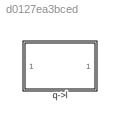
MODEL slx_d0127ea3bced
KIND model
CONFIG AbsTol = auto
CONFIG EnableMultiTasking = off
CONFIG FixedStep = auto
CONFIG MaxStep = auto
CONFIG MinStep = auto
CONFIG RelTol = 1e-3
CONFIG SampleTimeConstraint = Unconstrained
CONFIG Solver = VariableStepAuto
CONFIG SolverName = VariableStepAuto
CONFIG StartTime = 0.0
CONFIG StopTime = 10.0
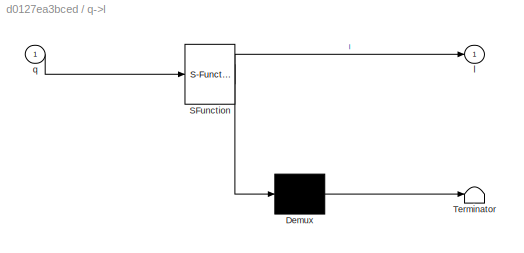
BLOCK [SubSystem] q->l
  ErrorFcn = Stateflow.Translate.translate
  PermitHierarchicalResolution = ExplicitOnly
  Ports = [1, 1]
  RequestExecContextInheritance = off
  SFBlockType = MATLAB Function
  TreatAsAtomicUnit = on
BLOCK [Demux] q->l/ Demux 
  Outputs = 1
  Ports = [1, 1]
BLOCK [S-Function] q->l/ SFunction 
  EnableBusSupport = on
  FunctionName = sf_sfun
  PortCounts = [1 2]
  Ports = [1, 2]
  SFcnIsStateOwnerBlock = off
  SFunctionDeploymentMode = off
  Tag = Stateflow S-Function q_to_l 2
BLOCK [Terminator] q->l/ Terminator 
BLOCK [Outport] q->l/l
  IconDisplay = Port number
BLOCK [Inport] q->l/q
  IconDisplay = Port number
CHART q->l states=1 transitions=1
  STATE_LABEL 'eML_blk_kernel()'
  STATE_LABEL 'SCRIPT:\nfunction l = fcn(q)\n\nq1 = q(1);\nq2 = q(2);\n\nl = [sqrt((sin(q1).*(1.0./1.0e1)-3.707106781186548e-1).^2+(cos(q1).*(1.0./1.0e1)-sqrt(2.0).*(1.0./2.0e1)).^2);sqrt((sin(q2).*(1.0./1.0e1)-3.707106781186548e-1).^2+(cos(q2).*(1.0./1.0e1)-sqrt(2.0).*(1.0./2.0e1)).^2)];\n'
